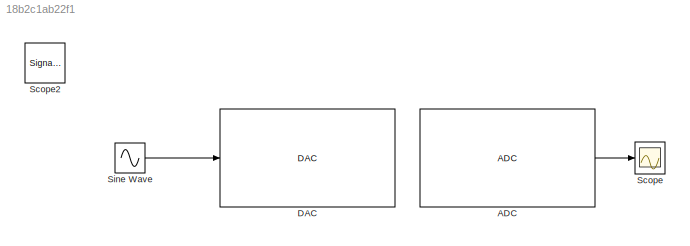
MODEL slx_18b2c1ab22f1
KIND model
BLOCK [Reference] ADC  REF=microdaq_lib/Analog/ADC  (lib defined in slx_912f07ce28e3)
  AttributesFormatString = Priority: %<Priority>
  Ports = [0, 1]
  Priority = 2
  SampleTime = 0.1
  SourceBlock = microdaq_lib/Analog/ADC
  SourceType = ADC block
  pAveraging = Off
  pChannel = 1
  pChannelCount = ones([1 1 ])
  pMode = 0
  pRange = [-10 10]
BLOCK [Reference] DAC  REF=microdaq_lib/Analog/DAC  (lib defined in slx_912f07ce28e3)
  AttributesFormatString = Priority: %<Priority>
  Ports = [1]
  Priority = 1
  SampleTime = 0.1
  SourceBlock = microdaq_lib/Analog/DAC
  SourceType = DAC block
  pChannel = 1
  pChannelCount = ones([1 1 ])
  pInitValue = 0
  pRange = [0 5]
  pTermValue = 0
  pUseInitTerm = 2
BLOCK [Scope] Scope
  DataFormat = StructureWithTime
  Decimation = 1
  Grid = on
  LimitDataPoints = on
  MaxDataPoints = 5000
  NumInputPorts = 1
  Ports = [1]
  SampleInput = off
  SampleTime = -1
  SaveName = ScopeData
  SaveToWorkspace = off
  ShowLegends = off
  TickLabels = OneTimeTick
  TimeRange = auto
  YMax = 3.75
  YMin = 1.25
  ZoomMode = on
BLOCK [SignalViewerScope] Scope2
  DataFormat = Array
  Decimation = 1
  Grid = on
  IOType = viewer
  LimitDataPoints = on
  MaxDataPoints = 7500
  NumInputPorts = 1
  Ports = []
  SampleInput = off
  SampleTime = -1
  SaveName = ScopeData
  SaveToWorkspace = off
  ShowLegends = off
  TickLabels = OneTimeTick
  TimeRange = auto
  YMax = 10
  YMin = -10
  ZoomMode = on
BLOCK [Sin] Sine Wave
  AttributesFormatString = Sample Time: %<SampleTime>
  Bias = 2.5
  Ports = [0, 1]
  SampleTime = 0.1
LINE ADC:1 -> Scope:1
LINE Sine Wave:1 -> DAC:1
